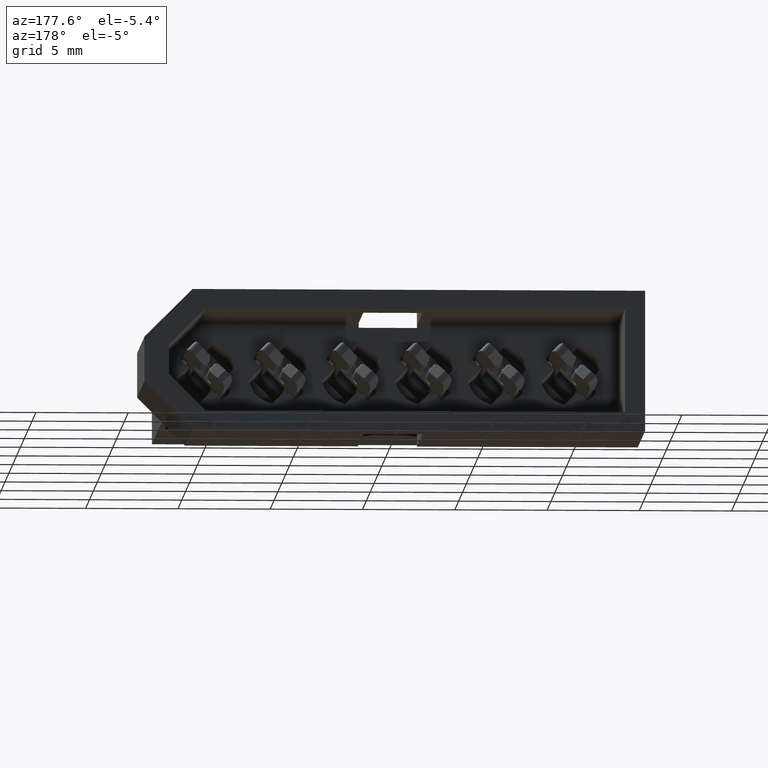
[diagram: clean part render]
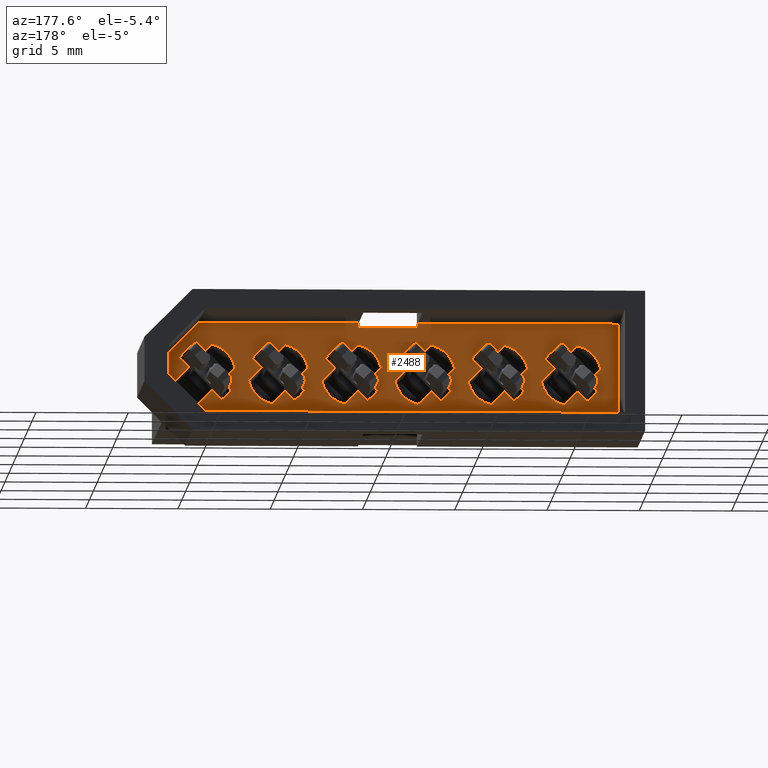
[diagram: same view with one face highlighted and labeled with its STEP entity id]
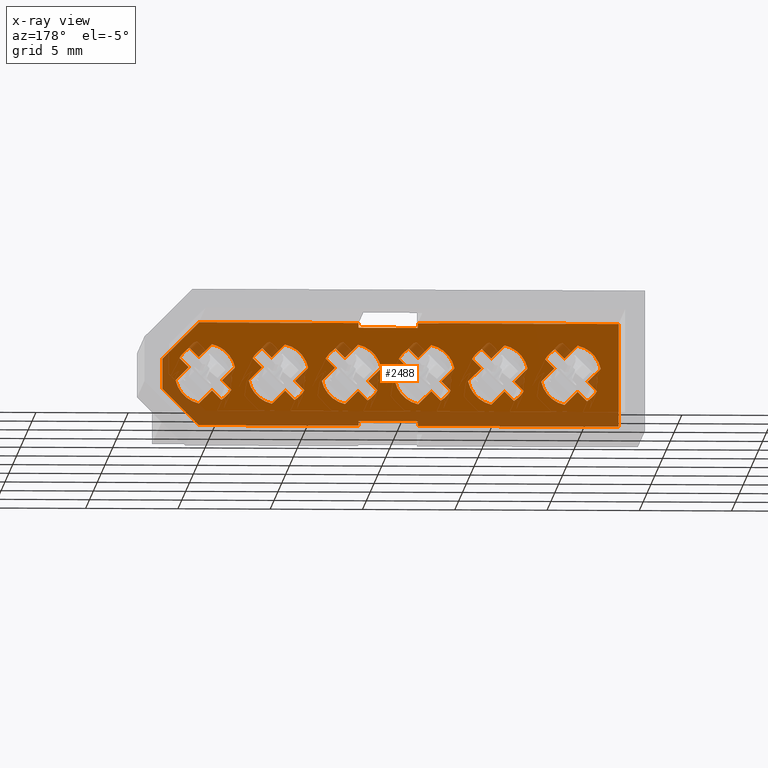
[diagram: x-ray of the same camera — body ghosted, the highlighted face saturated]
A machine part, auxiliary view. The second image highlights one B-rep face of the part: STEP entity #2488.
The next image is the same camera in x-ray: the body ghosted, the highlighted face saturated — about 25% of this face is hidden behind the body in this view.
In plain terms, the highlighted planar face has unit normal (0, -1, 0).
Its self-contained STEP definition (entity closure, byte-faithful):
#7 = CARTESIAN_POINT ( 'NONE',  ( -2.575109175245272800, 1.015999999999999600, -2.793999999999999200 ) ) ;
#39 = CARTESIAN_POINT ( 'NONE',  ( -0.3551198414618430000, 1.015999999999999600, 1.612355698411524400 ) ) ;
#44 = DIRECTION ( 'NONE',  ( -0.7071067811865479100, -0.0000000000000000000, -0.7071067811865472400 ) ) ;
#49 = ORIENTED_EDGE ( 'NONE', *, *, #7945, .F. ) ;
#52 = CARTESIAN_POINT ( 'NONE',  ( 4.321610244842764500, 1.015999999999999600, 0.8980256121069167800 ) ) ;
#63 = VECTOR ( 'NONE', #7915, 1000.000000000000100 ) ;
#70 = CARTESIAN_POINT ( 'NONE',  ( 11.50620000000000200, 1.015999999999999600, -2.794000000000002700 ) ) ;
#93 = EDGE_CURVE ( 'NONE', #8089, #1264, #7784, .T. ) ;
#123 = DIRECTION ( 'NONE',  ( 0.0000000000000000000, 0.0000000000000000000, 1.000000000000000000 ) ) ;
#127 = CARTESIAN_POINT ( 'NONE',  ( 11.53208015853815600, 1.015999999999999600, 1.612355698411524200 ) ) ;
#147 = VERTEX_POINT ( 'NONE', #2831 ) ;
#149 = ORIENTED_EDGE ( 'NONE', *, *, #8045, .F. ) ;
#153 = CARTESIAN_POINT ( 'NONE',  ( 4.828914848937816200, 1.015999999999999600, 1.405330216201970100 ) ) ;
#156 = FACE_BOUND ( 'NONE', #7640, .T. ) ;
#160 = ORIENTED_EDGE ( 'NONE', *, *, #5793, .F. ) ;
#188 = CARTESIAN_POINT ( 'NONE',  ( 7.565589755157232000, 1.015999999999999600, -0.8980256121069142300 ) ) ;
#190 = VERTEX_POINT ( 'NONE', #1592 ) ;
#203 = DIRECTION ( 'NONE',  ( -0.7071067811865441300, -0.0000000000000000000, -0.7071067811865507900 ) ) ;
#243 = EDGE_CURVE ( 'NONE', #7851, #2164, #3482, .T. ) ;
#252 = VERTEX_POINT ( 'NONE', #70 ) ;
#271 = CARTESIAN_POINT ( 'NONE',  ( 8.305799999999994300, 1.015999999999999600, -2.539999999999999600 ) ) ;
#299 = VECTOR ( 'NONE', #774, 1000.000000000000000 ) ;
#301 = EDGE_CURVE ( 'NONE', #8111, #426, #2908, .T. ) ;
#307 = VERTEX_POINT ( 'NONE', #5313 ) ;
#327 = DIRECTION ( 'NONE',  ( -0.7071067811865473500, -0.0000000000000000000, 0.7071067811865476800 ) ) ;
#331 = CARTESIAN_POINT ( 'NONE',  ( 0.8980256121069147800, 1.015999999999999600, 0.3592102448427675300 ) ) ;
#340 = CIRCLE ( 'NONE', #4217, 1.650999999999999800 ) ;
#346 = CARTESIAN_POINT ( 'NONE',  ( -2.575109175245272800, 1.015999999999999600, -2.793999999999999200 ) ) ;
#355 = DIRECTION ( 'NONE',  ( 0.7071067811865479100, 0.0000000000000000000, -0.7071067811865470200 ) ) ;
#356 = ORIENTED_EDGE ( 'NONE', *, *, #8534, .F. ) ;
#362 = CARTESIAN_POINT ( 'NONE',  ( 11.88719999999999800, 1.015999999999999600, 0.0000000000000000000 ) ) ;
#381 = LINE ( 'NONE', #52, #4014 ) ;
#386 = DIRECTION ( 'NONE',  ( 0.0000000000000000000, 0.0000000000000000000, 1.000000000000000000 ) ) ;
#406 = EDGE_CURVE ( 'NONE', #9323, #307, #6193, .T. ) ;
#417 = EDGE_LOOP ( 'NONE', ( #6371, #835, #4051, #5792, #3807, #6722, #583, #5144, #5942, #7756, #8132, #913 ) ) ;
#424 = EDGE_CURVE ( 'NONE', #4663, #4720, #4731, .T. ) ;
#426 = VERTEX_POINT ( 'NONE', #3305 ) ;
#432 = DIRECTION ( 'NONE',  ( 2.134256245050205500E-015, -0.0000000000000000000, -1.000000000000000000 ) ) ;
#433 = VECTOR ( 'NONE', #8223, 999.9999999999998900 ) ;
#434 = DIRECTION ( 'NONE',  ( -1.000000000000000000, -0.0000000000000000000, 1.526172063499589000E-016 ) ) ;
#441 = ORIENTED_EDGE ( 'NONE', *, *, #5807, .F. ) ;
#456 = CARTESIAN_POINT ( 'NONE',  ( 4.860425612106914700, 1.015999999999999600, 0.3592102448427675300 ) ) ;
#460 = CARTESIAN_POINT ( 'NONE',  ( 3.607280158538156600, 1.015999999999999600, 1.612355698411524600 ) ) ;
#464 = DIRECTION ( 'NONE',  ( -0.7071067811865460200, -0.0000000000000000000, -0.7071067811865490200 ) ) ;
#486 = LINE ( 'NONE', #6521, #8743 ) ;
#487 = CARTESIAN_POINT ( 'NONE',  ( 10.48186978379803200, 1.015999999999999600, -0.8665148489378204900 ) ) ;
#506 = CARTESIAN_POINT ( 'NONE',  ( 6.519469783798033500, 1.015999999999999600, -0.8665148489378219400 ) ) ;
#507 = VERTEX_POINT ( 'NONE', #4001 ) ;
#518 = VERTEX_POINT ( 'NONE', #9215 ) ;
#532 = DIRECTION ( 'NONE',  ( 0.0000000000000000000, 1.000000000000000000, 0.0000000000000000000 ) ) ;
#550 = CARTESIAN_POINT ( 'NONE',  ( 1.612355698411524200, 1.015999999999999600, -0.3551198414618434400 ) ) ;
#554 = EDGE_CURVE ( 'NONE', #4378, #252, #1538, .T. ) ;
#565 = ORIENTED_EDGE ( 'NONE', *, *, #6608, .F. ) ;
#571 = EDGE_CURVE ( 'NONE', #7006, #6643, #9125, .T. ) ;
#576 = DIRECTION ( 'NONE',  ( 0.7071067811865479100, 0.0000000000000000000, -0.7071067811865470200 ) ) ;
#583 = ORIENTED_EDGE ( 'NONE', *, *, #3395, .F. ) ;
#584 = CIRCLE ( 'NONE', #1627, 1.650999999999999400 ) ;
#601 = VECTOR ( 'NONE', #1714, 1000.000000000000000 ) ;
#607 = CARTESIAN_POINT ( 'NONE',  ( 11.02068515106218200, 1.015999999999999600, -1.405330216201969200 ) ) ;
#616 = EDGE_CURVE ( 'NONE', #3001, #8449, #2681, .T. ) ;
#623 = ORIENTED_EDGE ( 'NONE', *, *, #7391, .F. ) ;
#624 = VERTEX_POINT ( 'NONE', #8018 ) ;
#649 = CARTESIAN_POINT ( 'NONE',  ( 0.8980256121069147800, 1.015999999999999600, 0.3592102448427674200 ) ) ;
#691 = CARTESIAN_POINT ( 'NONE',  ( 7.058285151062182900, 1.015999999999999600, -1.405330216201969400 ) ) ;
#715 = LINE ( 'NONE', #3237, #6489 ) ;
#726 = CIRCLE ( 'NONE', #4825, 1.650999999999999800 ) ;
#747 = CARTESIAN_POINT ( 'NONE',  ( 19.81199999999999800, 1.015999999999999600, 0.0000000000000000000 ) ) ;
#754 = LINE ( 'NONE', #4203, #4946 ) ;
#764 = EDGE_CURVE ( 'NONE', #999, #9038, #4390, .T. ) ;
#774 = DIRECTION ( 'NONE',  ( 1.000000000000000000, -0.0000000000000000000, -1.144629047624691800E-016 ) ) ;
#809 = DIRECTION ( 'NONE',  ( -0.0000000000000000000, 0.0000000000000000000, 1.000000000000000000 ) ) ;
#810 = CARTESIAN_POINT ( 'NONE',  ( 7.569680158538155900, 1.015999999999999600, 1.612355698411524600 ) ) ;
#834 = CARTESIAN_POINT ( 'NONE',  ( 11.02068515106218200, 1.015999999999999600, -1.405330216201969200 ) ) ;
#835 = ORIENTED_EDGE ( 'NONE', *, *, #1189, .F. ) ;
#846 = ORIENTED_EDGE ( 'NONE', *, *, #4614, .T. ) ;
#848 = EDGE_CURVE ( 'NONE', #1977, #9323, #6752, .T. ) ;
#860 = AXIS2_PLACEMENT_3D ( 'NONE', #4545, #4425, #1526 ) ;
#872 = AXIS2_PLACEMENT_3D ( 'NONE', #8198, #1076, #1008 ) ;
#881 = EDGE_CURVE ( 'NONE', #5858, #518, #4055, .T. ) ;
#907 = EDGE_CURVE ( 'NONE', #426, #4208, #754, .T. ) ;
#913 = ORIENTED_EDGE ( 'NONE', *, *, #2113, .F. ) ;
#928 = VERTEX_POINT ( 'NONE', #9223 ) ;
#938 = CARTESIAN_POINT ( 'NONE',  ( 8.305799999999994300, 1.015999999999999600, -2.794000000000002700 ) ) ;
#963 = LINE ( 'NONE', #1657, #1191 ) ;
#980 = CARTESIAN_POINT ( 'NONE',  ( 0.8980256121069147800, 1.015999999999999600, 0.3592102448427675300 ) ) ;
#984 = ORIENTED_EDGE ( 'NONE', *, *, #7993, .F. ) ;
#995 = VECTOR ( 'NONE', #2316, 1000.000000000000000 ) ;
#997 = DIRECTION ( 'NONE',  ( 0.0000000000000000000, 0.0000000000000000000, 1.000000000000000000 ) ) ;
#999 = VERTEX_POINT ( 'NONE', #5223 ) ;
#1005 = EDGE_CURVE ( 'NONE', #2164, #7138, #963, .T. ) ;
#1008 = DIRECTION ( 'NONE',  ( 0.0000000000000000000, 0.0000000000000000000, -1.000000000000000000 ) ) ;
#1054 = ORIENTED_EDGE ( 'NONE', *, *, #2722, .F. ) ;
#1062 = VERTEX_POINT ( 'NONE', #834 ) ;
#1067 = EDGE_CURVE ( 'NONE', #6280, #1977, #7197, .T. ) ;
#1075 = VERTEX_POINT ( 'NONE', #1558 ) ;
#1076 = DIRECTION ( 'NONE',  ( 0.0000000000000000000, -1.000000000000000000, 0.0000000000000000000 ) ) ;
#1110 = CARTESIAN_POINT ( 'NONE',  ( 9.537155698411522700, 1.015999999999999600, -0.3551198414618434400 ) ) ;
#1147 = DIRECTION ( 'NONE',  ( -0.7071067811865465700, -0.0000000000000000000, -0.7071067811865485700 ) ) ;
#1170 = CARTESIAN_POINT ( 'NONE',  ( 0.0000000000000000000, 1.015999999999999600, 0.0000000000000000000 ) ) ;
#1178 = DIRECTION ( 'NONE',  ( 0.0000000000000000000, 0.0000000000000000000, -1.000000000000000000 ) ) ;
#1181 = CIRCLE ( 'NONE', #8584, 1.650999999999999800 ) ;
#1189 = EDGE_CURVE ( 'NONE', #2698, #3001, #4497, .T. ) ;
#1191 = VECTOR ( 'NONE', #5927, 1000.000000000000100 ) ;
#1192 = CARTESIAN_POINT ( 'NONE',  ( 12.78522561210691300, 1.015999999999999600, 0.3592102448427675300 ) ) ;
#1213 = DIRECTION ( 'NONE',  ( 1.000000000000000000, -0.0000000000000000000, -1.144629047624691800E-016 ) ) ;
#1243 = VECTOR ( 'NONE', #2688, 1000.000000000000100 ) ;
#1254 = CARTESIAN_POINT ( 'NONE',  ( 10.27484430158847500, 1.015999999999999600, 0.3551198414618433300 ) ) ;
#1260 = VECTOR ( 'NONE', #1147, 1000.000000000000000 ) ;
#1264 = VERTEX_POINT ( 'NONE', #5542 ) ;
#1315 = DIRECTION ( 'NONE',  ( -0.7071067811865462400, -0.0000000000000000000, -0.7071067811865489100 ) ) ;
#1322 = DIRECTION ( 'NONE',  ( 0.0000000000000000000, 0.0000000000000000000, 1.000000000000000000 ) ) ;
#1341 = ORIENTED_EDGE ( 'NONE', *, *, #554, .F. ) ;
#1383 = ORIENTED_EDGE ( 'NONE', *, *, #7672, .F. ) ;
#1387 = EDGE_CURVE ( 'NONE', #4912, #8111, #6404, .T. ) ;
#1392 = VERTEX_POINT ( 'NONE', #9330 ) ;
#1396 = VECTOR ( 'NONE', #8475, 1000.000000000000000 ) ;
#1410 = ORIENTED_EDGE ( 'NONE', *, *, #1745, .F. ) ;
#1425 = DIRECTION ( 'NONE',  ( 0.7071067811865440200, 0.0000000000000000000, 0.7071067811865511300 ) ) ;
#1440 = VERTEX_POINT ( 'NONE', #649 ) ;
#1446 = DIRECTION ( 'NONE',  ( 0.7071067811865461300, 0.0000000000000000000, 0.7071067811865489100 ) ) ;
#1455 = DIRECTION ( 'NONE',  ( 0.0000000000000000000, 1.000000000000000000, 0.0000000000000000000 ) ) ;
#1466 = CARTESIAN_POINT ( 'NONE',  ( 0.3592102448427649800, 1.015999999999999600, 0.8980256121069167800 ) ) ;
#1473 = ORIENTED_EDGE ( 'NONE', *, *, #4778, .F. ) ;
#1487 = LINE ( 'NONE', #980, #6137 ) ;
#1490 = ORIENTED_EDGE ( 'NONE', *, *, #4494, .F. ) ;
#1498 = CARTESIAN_POINT ( 'NONE',  ( 20.15789082475472000, 1.015999999999999600, -2.794000000000002700 ) ) ;
#1504 = DIRECTION ( 'NONE',  ( 0.0000000000000000000, 0.0000000000000000000, 1.000000000000000000 ) ) ;
#1520 = DIRECTION ( 'NONE',  ( 0.0000000000000000000, 1.000000000000000000, 0.0000000000000000000 ) ) ;
#1523 = CARTESIAN_POINT ( 'NONE',  ( 11.52798975515723300, 1.015999999999999600, -0.8980256121069142300 ) ) ;
#1526 = DIRECTION ( 'NONE',  ( 0.0000000000000000000, 0.0000000000000000000, 1.000000000000000000 ) ) ;
#1529 = VERTEX_POINT ( 'NONE', #4320 ) ;
#1531 = ORIENTED_EDGE ( 'NONE', *, *, #2394, .F. ) ;
#1536 = DIRECTION ( 'NONE',  ( -0.7071067811865465700, -0.0000000000000000000, 0.7071067811865484600 ) ) ;
#1538 = LINE ( 'NONE', #8498, #2210 ) ;
#1544 = ORIENTED_EDGE ( 'NONE', *, *, #1872, .F. ) ;
#1552 = VERTEX_POINT ( 'NONE', #188 ) ;
#1554 = CARTESIAN_POINT ( 'NONE',  ( 7.569680158538155000, 1.015999999999999600, 1.612355698411524200 ) ) ;
#1558 = CARTESIAN_POINT ( 'NONE',  ( 14.44426978379803300, 1.015999999999999600, -0.8665148489378204900 ) ) ;
#1592 = CARTESIAN_POINT ( 'NONE',  ( 21.21733021620196200, 1.015999999999999600, 0.8665148489378218200 ) ) ;
#1627 = AXIS2_PLACEMENT_3D ( 'NONE', #4734, #5443, #386 ) ;
#1657 = CARTESIAN_POINT ( 'NONE',  ( -1.405330216201966100, 1.015999999999999600, -0.8665148489378208300 ) ) ;
#1660 = VECTOR ( 'NONE', #1213, 1000.000000000000000 ) ;
#1662 = LINE ( 'NONE', #1523, #6756 ) ;
#1686 = CARTESIAN_POINT ( 'NONE',  ( 11.53208015853815600, 1.015999999999999600, 1.612355698411524400 ) ) ;
#1688 = EDGE_LOOP ( 'NONE', ( #3225, #441, #8718, #3313, #4908, #3657, #149, #356, #1490, #4696, #1054, #984 ) ) ;
#1714 = DIRECTION ( 'NONE',  ( -0.7071067811865474600, -0.0000000000000000000, 0.7071067811865475700 ) ) ;
#1739 = PLANE ( 'NONE',  #872 ) ;
#1743 = DIRECTION ( 'NONE',  ( 0.7071067811865466800, 0.0000000000000000000, -0.7071067811865483500 ) ) ;
#1745 = EDGE_CURVE ( 'NONE', #1062, #4513, #1181, .T. ) ;
#1751 = EDGE_CURVE ( 'NONE', #4522, #147, #6674, .T. ) ;
#1752 = ORIENTED_EDGE ( 'NONE', *, *, #907, .F. ) ;
#1778 = CIRCLE ( 'NONE', #7351, 1.650999999999999800 ) ;
#1784 = CARTESIAN_POINT ( 'NONE',  ( 17.46195569841152600, 1.015999999999999600, -0.3551198414618434400 ) ) ;
#1788 = CIRCLE ( 'NONE', #5826, 1.650999999999999800 ) ;
#1795 = CARTESIAN_POINT ( 'NONE',  ( -1.405330216201966300, 1.015999999999999600, -0.8665148489378204900 ) ) ;
#1832 = CARTESIAN_POINT ( 'NONE',  ( 8.305799999999994300, 1.015999999999999600, 2.794000000000000000 ) ) ;
#1862 = DIRECTION ( 'NONE',  ( 0.0000000000000000000, 0.0000000000000000000, 1.000000000000000000 ) ) ;
#1863 = EDGE_CURVE ( 'NONE', #4713, #4375, #340, .T. ) ;
#1872 = EDGE_CURVE ( 'NONE', #2897, #1062, #4312, .T. ) ;
#1916 = LINE ( 'NONE', #6329, #5419 ) ;
#1923 = CIRCLE ( 'NONE', #7807, 1.651000000000000200 ) ;
#1947 = CARTESIAN_POINT ( 'NONE',  ( 3.603189755157232300, 1.015999999999999600, -0.8980256121069142300 ) ) ;
#1964 = FACE_BOUND ( 'NONE', #3272, .T. ) ;
#1974 = VERTEX_POINT ( 'NONE', #5113 ) ;
#1977 = VERTEX_POINT ( 'NONE', #5081 ) ;
#1995 = VECTOR ( 'NONE', #5901, 1000.000000000000000 ) ;
#1996 = CARTESIAN_POINT ( 'NONE',  ( 0.3592102448427649800, 1.015999999999999600, 0.8980256121069167800 ) ) ;
#1999 = VECTOR ( 'NONE', #4238, 1000.000000000000000 ) ;
#2011 = AXIS2_PLACEMENT_3D ( 'NONE', #362, #4744, #1178 ) ;
#2027 = VERTEX_POINT ( 'NONE', #3784 ) ;
#2036 = CARTESIAN_POINT ( 'NONE',  ( 11.88719999999999800, 1.015999999999999600, 0.0000000000000000000 ) ) ;
#2040 = LINE ( 'NONE', #7379, #5664 ) ;
#2046 = CARTESIAN_POINT ( 'NONE',  ( 0.0000000000000000000, 1.015999999999999600, 0.0000000000000000000 ) ) ;
#2080 = FACE_BOUND ( 'NONE', #3566, .T. ) ;
#2093 = VERTEX_POINT ( 'NONE', #8939 ) ;
#2113 = EDGE_CURVE ( 'NONE', #8449, #1529, #4765, .T. ) ;
#2135 = CARTESIAN_POINT ( 'NONE',  ( 8.822825612106912600, 1.015999999999999600, 0.3592102448427675300 ) ) ;
#2140 = CARTESIAN_POINT ( 'NONE',  ( 0.8665148489378161600, 1.015999999999999600, 1.405330216201970300 ) ) ;
#2142 = CARTESIAN_POINT ( 'NONE',  ( 3.095885151062184100, 1.015999999999999600, -1.405330216201969200 ) ) ;
#2164 = VERTEX_POINT ( 'NONE', #1795 ) ;
#2165 = VERTEX_POINT ( 'NONE', #2514 ) ;
#2177 = CARTESIAN_POINT ( 'NONE',  ( 16.20881024484276600, 1.015999999999999600, 0.8980256121069167800 ) ) ;
#2203 = EDGE_CURVE ( 'NONE', #5438, #5232, #9218, .T. ) ;
#2210 = VECTOR ( 'NONE', #4887, 1000.000000000000000 ) ;
#2227 = EDGE_CURVE ( 'NONE', #5043, #2913, #2875, .T. ) ;
#2243 = AXIS2_PLACEMENT_3D ( 'NONE', #6159, #7611, #3287 ) ;
#2316 = DIRECTION ( 'NONE',  ( 1.000000000000000000, 0.0000000000000000000, 0.0000000000000000000 ) ) ;
#2318 = VECTOR ( 'NONE', #8497, 1000.000000000000100 ) ;
#2339 = VERTEX_POINT ( 'NONE', #4987 ) ;
#2348 = EDGE_CURVE ( 'NONE', #307, #3656, #726, .T. ) ;
#2349 = VERTEX_POINT ( 'NONE', #4261 ) ;
#2358 = EDGE_CURVE ( 'NONE', #2662, #2698, #5031, .T. ) ;
#2364 = VERTEX_POINT ( 'NONE', #7151 ) ;
#2394 = EDGE_CURVE ( 'NONE', #6632, #6469, #7282, .T. ) ;
#2422 = DIRECTION ( 'NONE',  ( 0.0000000000000000000, 1.000000000000000000, 0.0000000000000000000 ) ) ;
#2479 = CARTESIAN_POINT ( 'NONE',  ( 15.84959999999999900, 1.015999999999999600, 0.0000000000000000000 ) ) ;
#2488 = ADVANCED_FACE ( 'NONE', ( #5704, #2534, #1964, #4251, #2080, #156, #7627 ), #1739, .F. ) ;
#2489 = CARTESIAN_POINT ( 'NONE',  ( 3.962399999999999700, 1.015999999999999600, 0.0000000000000000000 ) ) ;
#2514 = CARTESIAN_POINT ( 'NONE',  ( 8.822825612106912600, 1.015999999999999600, 0.3592102448427671500 ) ) ;
#2528 = ORIENTED_EDGE ( 'NONE', *, *, #4654, .F. ) ;
#2531 = EDGE_CURVE ( 'NONE', #9332, #3728, #715, .T. ) ;
#2534 = FACE_BOUND ( 'NONE', #417, .T. ) ;
#2548 = ORIENTED_EDGE ( 'NONE', *, *, #848, .F. ) ;
#2560 = CIRCLE ( 'NONE', #4389, 1.651000000000000500 ) ;
#2566 = AXIS2_PLACEMENT_3D ( 'NONE', #6266, #4879, #7704 ) ;
#2575 = CARTESIAN_POINT ( 'NONE',  ( 20.15789082475472000, 1.015999999999999600, 2.793999999999997400 ) ) ;
#2585 = ORIENTED_EDGE ( 'NONE', *, *, #2203, .T. ) ;
#2586 = VERTEX_POINT ( 'NONE', #938 ) ;
#2598 = EDGE_CURVE ( 'NONE', #2586, #6054, #3797, .T. ) ;
#2641 = CARTESIAN_POINT ( 'NONE',  ( 20.15789082475472000, 1.015999999999999600, 2.793999999999997400 ) ) ;
#2662 = VERTEX_POINT ( 'NONE', #7114 ) ;
#2681 = LINE ( 'NONE', #8840, #7655 ) ;
#2682 = CARTESIAN_POINT ( 'NONE',  ( 20.71002561210691100, 1.015999999999999600, 0.3592102448427675300 ) ) ;
#2688 = DIRECTION ( 'NONE',  ( 0.7071067811865470200, 0.0000000000000000000, -0.7071067811865479100 ) ) ;
#2694 = ORIENTED_EDGE ( 'NONE', *, *, #4439, .F. ) ;
#2698 = VERTEX_POINT ( 'NONE', #4159 ) ;
#2707 = ORIENTED_EDGE ( 'NONE', *, *, #5397, .F. ) ;
#2722 = EDGE_CURVE ( 'NONE', #3929, #8890, #7850, .T. ) ;
#2729 = ORIENTED_EDGE ( 'NONE', *, *, #2830, .F. ) ;
#2736 = EDGE_LOOP ( 'NONE', ( #9070, #4045, #5550, #2548, #8419, #2729, #2841, #3764, #7951, #565, #4716, #2707 ) ) ;
#2757 = DIRECTION ( 'NONE',  ( 0.7071067811865440200, 0.0000000000000000000, 0.7071067811865511300 ) ) ;
#2818 = CIRCLE ( 'NONE', #6907, 1.650999999999999800 ) ;
#2830 = EDGE_CURVE ( 'NONE', #8253, #6280, #381, .T. ) ;
#2831 = CARTESIAN_POINT ( 'NONE',  ( 0.3551198414618428300, 1.015999999999999600, -1.612355698411524600 ) ) ;
#2841 = ORIENTED_EDGE ( 'NONE', *, *, #3956, .F. ) ;
#2844 = VERTEX_POINT ( 'NONE', #2902 ) ;
#2863 = DIRECTION ( 'NONE',  ( 0.0000000000000000000, 1.000000000000000000, -0.0000000000000000000 ) ) ;
#2864 = VECTOR ( 'NONE', #5660, 1000.000000000000000 ) ;
#2875 = LINE ( 'NONE', #6317, #1396 ) ;
#2889 = CARTESIAN_POINT ( 'NONE',  ( 12.75371484893781500, 1.015999999999999600, 1.405330216201970300 ) ) ;
#2891 = CARTESIAN_POINT ( 'NONE',  ( 8.791314848937815900, 1.015999999999999600, 1.405330216201970300 ) ) ;
#2893 = EDGE_CURVE ( 'NONE', #1264, #2165, #3772, .T. ) ;
#2896 = CARTESIAN_POINT ( 'NONE',  ( 20.71002561210691400, 1.015999999999999600, 0.3592102448427680300 ) ) ;
#2897 = VERTEX_POINT ( 'NONE', #3607 ) ;
#2902 = CARTESIAN_POINT ( 'NONE',  ( 7.026774387893085300, 1.015999999999999600, -0.3592102448427669200 ) ) ;
#2908 = LINE ( 'NONE', #1686, #7093 ) ;
#2913 = VERTEX_POINT ( 'NONE', #6479 ) ;
#2918 = ORIENTED_EDGE ( 'NONE', *, *, #7994, .F. ) ;
#2927 = CARTESIAN_POINT ( 'NONE',  ( 4.860425612106914700, 1.015999999999999600, 0.3592102448427675300 ) ) ;
#2943 = VECTOR ( 'NONE', #327, 1000.000000000000100 ) ;
#2949 = CARTESIAN_POINT ( 'NONE',  ( 0.0000000000000000000, 1.015999999999999600, 0.0000000000000000000 ) ) ;
#2954 = LINE ( 'NONE', #460, #7825 ) ;
#2957 = CARTESIAN_POINT ( 'NONE',  ( 8.305799999999994300, 1.015999999999999600, 0.0000000000000000000 ) ) ;
#3001 = VERTEX_POINT ( 'NONE', #4529 ) ;
#3006 = ORIENTED_EDGE ( 'NONE', *, *, #6067, .T. ) ;
#3017 = CARTESIAN_POINT ( 'NONE',  ( 18.40666978379803000, 1.015999999999999600, -0.8665148489378208300 ) ) ;
#3027 = CIRCLE ( 'NONE', #9226, 1.651000000000000900 ) ;
#3037 = DIRECTION ( 'NONE',  ( 0.0000000000000000000, 1.000000000000000000, -0.0000000000000000000 ) ) ;
#3128 = LINE ( 'NONE', #5819, #63 ) ;
#3140 = ORIENTED_EDGE ( 'NONE', *, *, #8546, .F. ) ;
#3155 = LINE ( 'NONE', #4607, #8485 ) ;
#3158 = EDGE_CURVE ( 'NONE', #2339, #2027, #5581, .T. ) ;
#3160 = AXIS2_PLACEMENT_3D ( 'NONE', #4816, #9236, #1322 ) ;
#3163 = EDGE_LOOP ( 'NONE', ( #1341, #3006, #4071, #7296, #8360, #4442, #4824, #8979, #846, #6083, #3618, #2585, #3927, #5496 ) ) ;
#3169 = AXIS2_PLACEMENT_3D ( 'NONE', #5104, #8626, #6410 ) ;
#3181 = VECTOR ( 'NONE', #7270, 1000.000000000000000 ) ;
#3198 = CARTESIAN_POINT ( 'NONE',  ( 10.27484430158847500, 1.015999999999999600, 0.3551198414618433300 ) ) ;
#3208 = CARTESIAN_POINT ( 'NONE',  ( 6.312444301588475200, 1.015999999999999600, 0.3551198414618435600 ) ) ;
#3212 = EDGE_CURVE ( 'NONE', #3656, #5469, #5341, .T. ) ;
#3225 = ORIENTED_EDGE ( 'NONE', *, *, #2531, .F. ) ;
#3227 = DIRECTION ( 'NONE',  ( 0.0000000000000000000, 1.000000000000000000, 0.0000000000000000000 ) ) ;
#3237 = CARTESIAN_POINT ( 'NONE',  ( 20.71002561210691100, 1.015999999999999600, 0.3592102448427675300 ) ) ;
#3266 = LINE ( 'NONE', #1498, #5744 ) ;
#3272 = EDGE_LOOP ( 'NONE', ( #2918, #8927, #4928, #5130, #6136, #8427, #2694, #7582, #1531, #8754, #623, #8991 ) ) ;
#3287 = DIRECTION ( 'NONE',  ( 0.0000000000000000000, 0.0000000000000000000, 1.000000000000000000 ) ) ;
#3305 = CARTESIAN_POINT ( 'NONE',  ( 12.24641024484276400, 1.015999999999999600, 0.8980256121069167800 ) ) ;
#3308 = LINE ( 'NONE', #8872, #7603 ) ;
#3312 = ORIENTED_EDGE ( 'NONE', *, *, #1005, .F. ) ;
#3313 = ORIENTED_EDGE ( 'NONE', *, *, #7210, .F. ) ;
#3329 = EDGE_CURVE ( 'NONE', #6643, #8089, #486, .T. ) ;
#3330 = DIRECTION ( 'NONE',  ( 0.0000000000000000000, 1.000000000000000000, 0.0000000000000000000 ) ) ;
#3356 = DIRECTION ( 'NONE',  ( 0.0000000000000000000, 0.0000000000000000000, 1.000000000000000000 ) ) ;
#3362 = ORIENTED_EDGE ( 'NONE', *, *, #1863, .F. ) ;
#3395 = EDGE_CURVE ( 'NONE', #4109, #2339, #3428, .T. ) ;
#3397 = CARTESIAN_POINT ( 'NONE',  ( -0.3592102448427670300, 1.015999999999999600, -0.8980256121069142300 ) ) ;
#3428 = LINE ( 'NONE', #4598, #601 ) ;
#3441 = EDGE_CURVE ( 'NONE', #1440, #4522, #1487, .T. ) ;
#3456 = CARTESIAN_POINT ( 'NONE',  ( 18.40666978379803000, 1.015999999999999600, -0.8665148489378202700 ) ) ;
#3475 = AXIS2_PLACEMENT_3D ( 'NONE', #8559, #4168, #4198 ) ;
#3482 = CIRCLE ( 'NONE', #9041, 1.650999999999999800 ) ;
#3484 = CARTESIAN_POINT ( 'NONE',  ( 11.50620000000000200, 1.015999999999999600, 2.539999999999999600 ) ) ;
#3503 = VERTEX_POINT ( 'NONE', #1110 ) ;
#3521 = LINE ( 'NONE', #5009, #3857 ) ;
#3540 = CARTESIAN_POINT ( 'NONE',  ( 8.284010244842763300, 1.015999999999999600, 0.8980256121069167800 ) ) ;
#3564 = CARTESIAN_POINT ( 'NONE',  ( 13.29253021620196600, 1.015999999999999600, 0.8665148489378213800 ) ) ;
#3566 = EDGE_LOOP ( 'NONE', ( #8735, #1473, #1383, #1752, #3827, #5836, #160, #7634, #1410, #1544, #6770, #9102 ) ) ;
#3567 = CARTESIAN_POINT ( 'NONE',  ( 11.50620000000000200, 1.015999999999999600, 2.794000000000000000 ) ) ;
#3607 = CARTESIAN_POINT ( 'NONE',  ( 11.52798975515723300, 1.015999999999999600, -0.8980256121069142300 ) ) ;
#3618 = ORIENTED_EDGE ( 'NONE', *, *, #8163, .T. ) ;
#3619 = DIRECTION ( 'NONE',  ( -0.7071067811865473500, -0.0000000000000000000, 0.7071067811865477900 ) ) ;
#3627 = CARTESIAN_POINT ( 'NONE',  ( 8.822825612106912600, 1.015999999999999600, 0.3592102448427675300 ) ) ;
#3631 = DIRECTION ( 'NONE',  ( 0.7071067811865460200, 0.0000000000000000000, 0.7071067811865490200 ) ) ;
#3638 = DIRECTION ( 'NONE',  ( -0.7071067811865435800, -0.0000000000000000000, -0.7071067811865515700 ) ) ;
#3656 = VERTEX_POINT ( 'NONE', #5537 ) ;
#3657 = ORIENTED_EDGE ( 'NONE', *, *, #4838, .F. ) ;
#3660 = VERTEX_POINT ( 'NONE', #3484 ) ;
#3721 = VERTEX_POINT ( 'NONE', #9320 ) ;
#3728 = VERTEX_POINT ( 'NONE', #5814 ) ;
#3739 = EDGE_CURVE ( 'NONE', #1552, #6632, #5216, .T. ) ;
#3764 = ORIENTED_EDGE ( 'NONE', *, *, #6546, .F. ) ;
#3772 = LINE ( 'NONE', #2135, #9310 ) ;
#3773 = CARTESIAN_POINT ( 'NONE',  ( 11.50620000000000200, 1.015999999999999600, -2.539999999999999600 ) ) ;
#3784 = CARTESIAN_POINT ( 'NONE',  ( 15.49448015853815600, 1.015999999999999600, 1.612355698411524400 ) ) ;
#3797 = LINE ( 'NONE', #2957, #5924 ) ;
#3807 = ORIENTED_EDGE ( 'NONE', *, *, #5154, .F. ) ;
#3808 = EDGE_CURVE ( 'NONE', #7499, #7259, #3308, .T. ) ;
#3827 = ORIENTED_EDGE ( 'NONE', *, *, #301, .F. ) ;
#3842 = LINE ( 'NONE', #4034, #7462 ) ;
#3849 = VECTOR ( 'NONE', #7873, 1000.000000000000100 ) ;
#3856 = ORIENTED_EDGE ( 'NONE', *, *, #1751, .F. ) ;
#3857 = VECTOR ( 'NONE', #8557, 1000.000000000000000 ) ;
#3873 = CARTESIAN_POINT ( 'NONE',  ( 16.74762561210691200, 1.015999999999999600, 0.3592102448427675300 ) ) ;
#3888 = EDGE_CURVE ( 'NONE', #4720, #1440, #7488, .T. ) ;
#3927 = ORIENTED_EDGE ( 'NONE', *, *, #9372, .T. ) ;
#3928 = VECTOR ( 'NONE', #1446, 1000.000000000000100 ) ;
#3929 = VERTEX_POINT ( 'NONE', #4740 ) ;
#3934 = VECTOR ( 'NONE', #4330, 1000.000000000000100 ) ;
#3951 = VECTOR ( 'NONE', #1536, 1000.000000000000000 ) ;
#3956 = EDGE_CURVE ( 'NONE', #4157, #8253, #2954, .T. ) ;
#3976 = CARTESIAN_POINT ( 'NONE',  ( 0.0000000000000000000, 1.015999999999999600, -2.539999999999999600 ) ) ;
#3978 = LINE ( 'NONE', #7817, #8828 ) ;
#4001 = CARTESIAN_POINT ( 'NONE',  ( 18.94548515106218300, 1.015999999999999600, -1.405330216201969200 ) ) ;
#4014 = VECTOR ( 'NONE', #5083, 1000.000000000000000 ) ;
#4034 = CARTESIAN_POINT ( 'NONE',  ( 2.350044301588475100, 1.015999999999999600, 0.3551198414618435600 ) ) ;
#4045 = ORIENTED_EDGE ( 'NONE', *, *, #2348, .F. ) ;
#4047 = VECTOR ( 'NONE', #6501, 1000.000000000000000 ) ;
#4051 = ORIENTED_EDGE ( 'NONE', *, *, #2358, .F. ) ;
#4055 = LINE ( 'NONE', #2575, #1660 ) ;
#4071 = ORIENTED_EDGE ( 'NONE', *, *, #2598, .F. ) ;
#4082 = VECTOR ( 'NONE', #5957, 1000.000000000000100 ) ;
#4109 = VERTEX_POINT ( 'NONE', #7691 ) ;
#4118 = ORIENTED_EDGE ( 'NONE', *, *, #424, .F. ) ;
#4129 = VERTEX_POINT ( 'NONE', #8528 ) ;
#4157 = VERTEX_POINT ( 'NONE', #8573 ) ;
#4159 = CARTESIAN_POINT ( 'NONE',  ( 17.25493021620196300, 1.015999999999999600, 0.8665148489378218200 ) ) ;
#4168 = DIRECTION ( 'NONE',  ( 0.0000000000000000000, 1.000000000000000000, 0.0000000000000000000 ) ) ;
#4177 = DIRECTION ( 'NONE',  ( 0.0000000000000000000, 1.000000000000000000, 0.0000000000000000000 ) ) ;
#4198 = DIRECTION ( 'NONE',  ( 0.0000000000000000000, 0.0000000000000000000, 1.000000000000000000 ) ) ;
#4203 = CARTESIAN_POINT ( 'NONE',  ( 12.24641024484276400, 1.015999999999999600, 0.8980256121069167800 ) ) ;
#4208 = VERTEX_POINT ( 'NONE', #2889 ) ;
#4217 = AXIS2_PLACEMENT_3D ( 'NONE', #2046, #9264, #9289 ) ;
#4218 = CARTESIAN_POINT ( 'NONE',  ( 19.45278975515723000, 1.015999999999999600, -0.8980256121069142300 ) ) ;
#4236 = DIRECTION ( 'NONE',  ( 0.0000000000000000000, 0.0000000000000000000, 1.000000000000000000 ) ) ;
#4238 = DIRECTION ( 'NONE',  ( -1.000000000000000000, -0.0000000000000000000, 1.526172063499589000E-016 ) ) ;
#4251 = FACE_BOUND ( 'NONE', #2736, .T. ) ;
#4261 = CARTESIAN_POINT ( 'NONE',  ( 3.064374387893085600, 1.015999999999999600, -0.3592102448427669200 ) ) ;
#4270 = CARTESIAN_POINT ( 'NONE',  ( 18.19964430158847100, 1.015999999999999600, 0.3551198414618433300 ) ) ;
#4272 = VECTOR ( 'NONE', #7730, 1000.000000000000000 ) ;
#4275 = CARTESIAN_POINT ( 'NONE',  ( 22.13909082475472400, 1.015999999999999600, -0.8128000000000016300 ) ) ;
#4312 = LINE ( 'NONE', #607, #3849 ) ;
#4320 = CARTESIAN_POINT ( 'NONE',  ( 16.20471984146184100, 1.015999999999999600, -1.612355698411525500 ) ) ;
#4323 = CARTESIAN_POINT ( 'NONE',  ( 20.15789082475472000, 1.015999999999999600, -2.794000000000002700 ) ) ;
#4330 = DIRECTION ( 'NONE',  ( 0.7071067811865470200, 0.0000000000000000000, -0.7071067811865479100 ) ) ;
#4375 = VERTEX_POINT ( 'NONE', #7352 ) ;
#4378 = VERTEX_POINT ( 'NONE', #3773 ) ;
#4380 = CARTESIAN_POINT ( 'NONE',  ( 19.45688015853815500, 1.015999999999999600, 1.612355698411524400 ) ) ;
#4385 = LINE ( 'NONE', #3017, #3928 ) ;
#4388 = CARTESIAN_POINT ( 'NONE',  ( 15.84959999999999900, 1.015999999999999600, 0.0000000000000000000 ) ) ;
#4389 = AXIS2_PLACEMENT_3D ( 'NONE', #747, #2863, #6445 ) ;
#4390 = CIRCLE ( 'NONE', #2011, 1.650999999999999800 ) ;
#4395 = CARTESIAN_POINT ( 'NONE',  ( -0.8665148489378158300, 1.015999999999999600, -1.405330216201969200 ) ) ;
#4425 = DIRECTION ( 'NONE',  ( 0.0000000000000000000, 1.000000000000000000, 0.0000000000000000000 ) ) ;
#4430 = EDGE_CURVE ( 'NONE', #8890, #507, #2040, .T. ) ;
#4439 = EDGE_CURVE ( 'NONE', #2844, #2093, #7018, .T. ) ;
#4442 = ORIENTED_EDGE ( 'NONE', *, *, #8501, .T. ) ;
#4469 = DIRECTION ( 'NONE',  ( 0.0000000000000000000, 1.000000000000000000, 0.0000000000000000000 ) ) ;
#4475 = DIRECTION ( 'NONE',  ( 0.0000000000000000000, 0.0000000000000000000, 1.000000000000000000 ) ) ;
#4494 = EDGE_CURVE ( 'NONE', #507, #8553, #584, .T. ) ;
#4497 = LINE ( 'NONE', #3873, #8222 ) ;
#4501 = VECTOR ( 'NONE', #8801, 1000.000000000000100 ) ;
#4513 = VERTEX_POINT ( 'NONE', #487 ) ;
#4519 = VERTEX_POINT ( 'NONE', #7753 ) ;
#4520 = AXIS2_PLACEMENT_3D ( 'NONE', #2479, #4772, #8350 ) ;
#4522 = VERTEX_POINT ( 'NONE', #550 ) ;
#4529 = CARTESIAN_POINT ( 'NONE',  ( 16.74762561210690800, 1.015999999999999600, 0.3592102448427680300 ) ) ;
#4545 = CARTESIAN_POINT ( 'NONE',  ( 3.962399999999999700, 1.015999999999999600, 0.0000000000000000000 ) ) ;
#4577 = VERTEX_POINT ( 'NONE', #3397 ) ;
#4590 = CARTESIAN_POINT ( 'NONE',  ( 19.45278975515723000, 1.015999999999999600, -0.8980256121069142300 ) ) ;
#4598 = CARTESIAN_POINT ( 'NONE',  ( 14.23724430158847400, 1.015999999999999600, 0.3551198414618433300 ) ) ;
#4607 = CARTESIAN_POINT ( 'NONE',  ( 6.519469783798033500, 1.015999999999999600, -0.8665148489378209400 ) ) ;
#4614 = EDGE_CURVE ( 'NONE', #3660, #5858, #3978, .T. ) ;
#4615 = ORIENTED_EDGE ( 'NONE', *, *, #7855, .F. ) ;
#4654 = EDGE_CURVE ( 'NONE', #147, #4577, #3521, .T. ) ;
#4663 = VERTEX_POINT ( 'NONE', #2140 ) ;
#4696 = ORIENTED_EDGE ( 'NONE', *, *, #4430, .F. ) ;
#4713 = VERTEX_POINT ( 'NONE', #7177 ) ;
#4716 = ORIENTED_EDGE ( 'NONE', *, *, #8225, .F. ) ;
#4720 = VERTEX_POINT ( 'NONE', #7146 ) ;
#4731 = CIRCLE ( 'NONE', #5767, 1.651000000000000900 ) ;
#4734 = CARTESIAN_POINT ( 'NONE',  ( 19.81199999999999800, 1.015999999999999600, 0.0000000000000000000 ) ) ;
#4736 = VECTOR ( 'NONE', #434, 1000.000000000000000 ) ;
#4740 = CARTESIAN_POINT ( 'NONE',  ( 20.16711984146183700, 1.015999999999999600, -1.612355698411525500 ) ) ;
#4744 = DIRECTION ( 'NONE',  ( 0.0000000000000000000, 1.000000000000000000, -0.0000000000000000000 ) ) ;
#4746 = VECTOR ( 'NONE', #9026, 1000.000000000000000 ) ;
#4748 = CIRCLE ( 'NONE', #7823, 1.650999999999999800 ) ;
#4756 = CIRCLE ( 'NONE', #3160, 1.650999999999999800 ) ;
#4765 = CIRCLE ( 'NONE', #4520, 1.651000000000000500 ) ;
#4766 = DIRECTION ( 'NONE',  ( 0.7071067811865474600, 0.0000000000000000000, -0.7071067811865476800 ) ) ;
#4772 = DIRECTION ( 'NONE',  ( 0.0000000000000000000, 1.000000000000000000, -0.0000000000000000000 ) ) ;
#4778 = EDGE_CURVE ( 'NONE', #8049, #6287, #9177, .T. ) ;
#4816 = CARTESIAN_POINT ( 'NONE',  ( 3.962399999999999700, 1.015999999999999600, 0.0000000000000000000 ) ) ;
#4824 = ORIENTED_EDGE ( 'NONE', *, *, #2227, .T. ) ;
#4825 = AXIS2_PLACEMENT_3D ( 'NONE', #5731, #9333, #7852 ) ;
#4835 = LINE ( 'NONE', #2641, #299 ) ;
#4838 = EDGE_CURVE ( 'NONE', #624, #5908, #1923, .T. ) ;
#4842 = VECTOR ( 'NONE', #7108, 999.9999999999998900 ) ;
#4874 = CARTESIAN_POINT ( 'NONE',  ( 12.24231984146184100, 1.015999999999999600, -1.612355698411524600 ) ) ;
#4879 = DIRECTION ( 'NONE',  ( 0.0000000000000000000, 1.000000000000000000, -0.0000000000000000000 ) ) ;
#4887 = DIRECTION ( 'NONE',  ( 0.0000000000000000000, 0.0000000000000000000, -1.000000000000000000 ) ) ;
#4908 = ORIENTED_EDGE ( 'NONE', *, *, #8666, .F. ) ;
#4912 = VERTEX_POINT ( 'NONE', #3198 ) ;
#4913 = DIRECTION ( 'NONE',  ( 0.0000000000000000000, 0.0000000000000000000, 1.000000000000000000 ) ) ;
#4928 = ORIENTED_EDGE ( 'NONE', *, *, #93, .F. ) ;
#4940 = LINE ( 'NONE', #1996, #2318 ) ;
#4946 = VECTOR ( 'NONE', #6558, 1000.000000000000000 ) ;
#4987 = CARTESIAN_POINT ( 'NONE',  ( 14.23724430158847400, 1.015999999999999600, 0.3551198414618433300 ) ) ;
#5009 = CARTESIAN_POINT ( 'NONE',  ( -0.3592102448427670300, 1.015999999999999600, -0.8980256121069142300 ) ) ;
#5025 = VERTEX_POINT ( 'NONE', #8361 ) ;
#5031 = CIRCLE ( 'NONE', #5781, 1.651000000000000000 ) ;
#5033 = DIRECTION ( 'NONE',  ( 0.7071067811865461300, 0.0000000000000000000, 0.7071067811865489100 ) ) ;
#5043 = VERTEX_POINT ( 'NONE', #1832 ) ;
#5081 = CARTESIAN_POINT ( 'NONE',  ( 5.367730216201966400, 1.015999999999999600, 0.8665148489378216000 ) ) ;
#5083 = DIRECTION ( 'NONE',  ( 0.7071067811865463500, 0.0000000000000000000, 0.7071067811865487900 ) ) ;
#5104 = CARTESIAN_POINT ( 'NONE',  ( 7.924799999999999400, 1.015999999999999600, 0.0000000000000000000 ) ) ;
#5113 = CARTESIAN_POINT ( 'NONE',  ( 2.350044301588475100, 1.015999999999999600, 0.3551198414618431100 ) ) ;
#5118 = CARTESIAN_POINT ( 'NONE',  ( 10.48186978379803200, 1.015999999999999600, -0.8665148489378208300 ) ) ;
#5123 = EDGE_CURVE ( 'NONE', #6287, #999, #6111, .T. ) ;
#5127 = CARTESIAN_POINT ( 'NONE',  ( -1.612355698411524200, 1.015999999999999600, 0.3551198414618433300 ) ) ;
#5130 = ORIENTED_EDGE ( 'NONE', *, *, #3329, .F. ) ;
#5138 = CARTESIAN_POINT ( 'NONE',  ( 15.49038975515723100, 1.015999999999999600, -0.8980256121069142300 ) ) ;
#5144 = ORIENTED_EDGE ( 'NONE', *, *, #8675, .F. ) ;
#5154 = EDGE_CURVE ( 'NONE', #2027, #1392, #1916, .T. ) ;
#5165 = VECTOR ( 'NONE', #8433, 1000.000000000000100 ) ;
#5169 = DIRECTION ( 'NONE',  ( 0.7071067811865479100, 0.0000000000000000000, -0.7071067811865471300 ) ) ;
#5216 = LINE ( 'NONE', #9351, #8631 ) ;
#5217 = DIRECTION ( 'NONE',  ( 0.0000000000000000000, 0.0000000000000000000, 1.000000000000000000 ) ) ;
#5220 = CARTESIAN_POINT ( 'NONE',  ( -0.8980256121069142300, 1.015999999999999600, -0.3592102448427669200 ) ) ;
#5223 = CARTESIAN_POINT ( 'NONE',  ( 13.49955569841152300, 1.015999999999999600, -0.3551198414618434400 ) ) ;
#5232 = VERTEX_POINT ( 'NONE', #4275 ) ;
#5313 = CARTESIAN_POINT ( 'NONE',  ( 5.574755698411523900, 1.015999999999999600, -0.3551198414618434400 ) ) ;
#5339 = AXIS2_PLACEMENT_3D ( 'NONE', #8001, #7404, #4475 ) ;
#5341 = LINE ( 'NONE', #1947, #6589 ) ;
#5372 = DIRECTION ( 'NONE',  ( -0.7071067811865475700, -0.0000000000000000000, 0.7071067811865474600 ) ) ;
#5377 = VERTEX_POINT ( 'NONE', #4323 ) ;
#5397 = EDGE_CURVE ( 'NONE', #5469, #7239, #8611, .T. ) ;
#5412 = DIRECTION ( 'NONE',  ( 0.7071067811865460200, 0.0000000000000000000, 0.7071067811865490200 ) ) ;
#5419 = VECTOR ( 'NONE', #576, 1000.000000000000100 ) ;
#5438 = VERTEX_POINT ( 'NONE', #6053 ) ;
#5443 = DIRECTION ( 'NONE',  ( 0.0000000000000000000, 1.000000000000000000, 0.0000000000000000000 ) ) ;
#5469 = VERTEX_POINT ( 'NONE', #7652 ) ;
#5496 = ORIENTED_EDGE ( 'NONE', *, *, #8031, .T. ) ;
#5526 = LINE ( 'NONE', #2682, #9369 ) ;
#5537 = CARTESIAN_POINT ( 'NONE',  ( 4.317519841461842300, 1.015999999999999600, -1.612355698411524400 ) ) ;
#5542 = CARTESIAN_POINT ( 'NONE',  ( 9.330130216201967000, 1.015999999999999600, 0.8665148489378214900 ) ) ;
#5550 = ORIENTED_EDGE ( 'NONE', *, *, #406, .F. ) ;
#5554 = EDGE_CURVE ( 'NONE', #2349, #1974, #3842, .T. ) ;
#5581 = CIRCLE ( 'NONE', #6753, 1.650999999999999600 ) ;
#5596 = DIRECTION ( 'NONE',  ( 0.0000000000000000000, 1.000000000000000000, 0.0000000000000000000 ) ) ;
#5610 = VERTEX_POINT ( 'NONE', #7683 ) ;
#5614 = LINE ( 'NONE', #5118, #7080 ) ;
#5648 = LINE ( 'NONE', #1254, #6105 ) ;
#5660 = DIRECTION ( 'NONE',  ( -0.7071067811865465700, -0.0000000000000000000, 0.7071067811865484600 ) ) ;
#5664 = VECTOR ( 'NONE', #5999, 1000.000000000000000 ) ;
#5704 = FACE_BOUND ( 'NONE', #1688, .T. ) ;
#5731 = CARTESIAN_POINT ( 'NONE',  ( 3.962399999999999700, 1.015999999999999600, 0.0000000000000000000 ) ) ;
#5735 = EDGE_CURVE ( 'NONE', #3503, #4129, #2818, .T. ) ;
#5744 = VECTOR ( 'NONE', #44, 999.9999999999998900 ) ;
#5767 = AXIS2_PLACEMENT_3D ( 'NONE', #1170, #3330, #6272 ) ;
#5781 = AXIS2_PLACEMENT_3D ( 'NONE', #4388, #1455, #6523 ) ;
#5792 = ORIENTED_EDGE ( 'NONE', *, *, #6848, .F. ) ;
#5793 = EDGE_CURVE ( 'NONE', #4519, #4912, #5648, .T. ) ;
#5807 = EDGE_CURVE ( 'NONE', #190, #9332, #5526, .T. ) ;
#5814 = CARTESIAN_POINT ( 'NONE',  ( 21.42435569841152100, 1.015999999999999600, -0.3551198414618434400 ) ) ;
#5819 = CARTESIAN_POINT ( 'NONE',  ( 14.44426978379803300, 1.015999999999999600, -0.8665148489378208300 ) ) ;
#5826 = AXIS2_PLACEMENT_3D ( 'NONE', #6791, #2422, #997 ) ;
#5836 = ORIENTED_EDGE ( 'NONE', *, *, #1387, .F. ) ;
#5858 = VERTEX_POINT ( 'NONE', #3567 ) ;
#5874 = DIRECTION ( 'NONE',  ( 0.0000000000000000000, 1.000000000000000000, 0.0000000000000000000 ) ) ;
#5901 = DIRECTION ( 'NONE',  ( 0.7071067811865474600, 0.0000000000000000000, -0.7071067811865476800 ) ) ;
#5908 = VERTEX_POINT ( 'NONE', #8835 ) ;
#5923 = CARTESIAN_POINT ( 'NONE',  ( 20.17121024484276100, 1.015999999999999600, 0.8980256121069167800 ) ) ;
#5924 = VECTOR ( 'NONE', #809, 1000.000000000000000 ) ;
#5927 = DIRECTION ( 'NONE',  ( 0.7071067811865461300, 0.0000000000000000000, 0.7071067811865489100 ) ) ;
#5937 = EDGE_CURVE ( 'NONE', #2913, #3660, #9042, .T. ) ;
#5942 = ORIENTED_EDGE ( 'NONE', *, *, #6714, .F. ) ;
#5957 = DIRECTION ( 'NONE',  ( -0.7071067811865431300, -0.0000000000000000000, -0.7071067811865519000 ) ) ;
#5999 = DIRECTION ( 'NONE',  ( -0.7071067811865430200, -0.0000000000000000000, -0.7071067811865521200 ) ) ;
#6007 = CARTESIAN_POINT ( 'NONE',  ( 15.49038975515723100, 1.015999999999999600, -0.8980256121069142300 ) ) ;
#6049 = EDGE_CURVE ( 'NONE', #6469, #2844, #3155, .T. ) ;
#6053 = CARTESIAN_POINT ( 'NONE',  ( 22.13909082475472100, 1.015999999999999600, 0.8127999999999986300 ) ) ;
#6054 = VERTEX_POINT ( 'NONE', #271 ) ;
#6067 = EDGE_CURVE ( 'NONE', #4378, #6054, #6878, .T. ) ;
#6083 = ORIENTED_EDGE ( 'NONE', *, *, #881, .T. ) ;
#6105 = VECTOR ( 'NONE', #7102, 1000.000000000000000 ) ;
#6111 = LINE ( 'NONE', #1192, #1243 ) ;
#6136 = ORIENTED_EDGE ( 'NONE', *, *, #571, .F. ) ;
#6137 = VECTOR ( 'NONE', #1743, 1000.000000000000000 ) ;
#6159 = CARTESIAN_POINT ( 'NONE',  ( 19.81199999999999800, 1.015999999999999600, 0.0000000000000000000 ) ) ;
#6181 = VECTOR ( 'NONE', #7266, 1000.000000000000000 ) ;
#6193 = LINE ( 'NONE', #456, #5165 ) ;
#6261 = ORIENTED_EDGE ( 'NONE', *, *, #3888, .F. ) ;
#6266 = CARTESIAN_POINT ( 'NONE',  ( 0.0000000000000000000, 1.015999999999999600, 0.0000000000000000000 ) ) ;
#6272 = DIRECTION ( 'NONE',  ( 0.0000000000000000000, 0.0000000000000000000, 1.000000000000000000 ) ) ;
#6280 = VERTEX_POINT ( 'NONE', #153 ) ;
#6287 = VERTEX_POINT ( 'NONE', #6671 ) ;
#6317 = CARTESIAN_POINT ( 'NONE',  ( 8.305799999999994300, 1.015999999999999600, 0.0000000000000000000 ) ) ;
#6322 = DIRECTION ( 'NONE',  ( -0.7071067811865474600, -0.0000000000000000000, 0.7071067811865476800 ) ) ;
#6329 = CARTESIAN_POINT ( 'NONE',  ( 15.49448015853815600, 1.015999999999999600, 1.612355698411524400 ) ) ;
#6361 = CARTESIAN_POINT ( 'NONE',  ( 11.88719999999999800, 1.015999999999999600, 0.0000000000000000000 ) ) ;
#6371 = ORIENTED_EDGE ( 'NONE', *, *, #616, .F. ) ;
#6404 = CIRCLE ( 'NONE', #3475, 1.650999999999999800 ) ;
#6410 = DIRECTION ( 'NONE',  ( 0.0000000000000000000, 0.0000000000000000000, 1.000000000000000000 ) ) ;
#6415 = LINE ( 'NONE', #4270, #4047 ) ;
#6424 = VECTOR ( 'NONE', #3619, 999.9999999999998900 ) ;
#6439 = VERTEX_POINT ( 'NONE', #346 ) ;
#6445 = DIRECTION ( 'NONE',  ( 0.0000000000000000000, 0.0000000000000000000, -1.000000000000000000 ) ) ;
#6469 = VERTEX_POINT ( 'NONE', #506 ) ;
#6479 = CARTESIAN_POINT ( 'NONE',  ( 8.305799999999994300, 1.015999999999999600, 2.539999999999999600 ) ) ;
#6489 = VECTOR ( 'NONE', #8236, 1000.000000000000000 ) ;
#6501 = DIRECTION ( 'NONE',  ( -0.7071067811865483500, -0.0000000000000000000, 0.7071067811865468000 ) ) ;
#6512 = CARTESIAN_POINT ( 'NONE',  ( -2.575109175245271900, 1.015999999999999600, 2.794000000000000000 ) ) ;
#6521 = CARTESIAN_POINT ( 'NONE',  ( 8.284010244842763300, 1.015999999999999600, 0.8980256121069167800 ) ) ;
#6523 = DIRECTION ( 'NONE',  ( 0.0000000000000000000, 0.0000000000000000000, 1.000000000000000000 ) ) ;
#6535 = LINE ( 'NONE', #5923, #9253 ) ;
#6546 = EDGE_CURVE ( 'NONE', #1974, #4157, #4756, .T. ) ;
#6558 = DIRECTION ( 'NONE',  ( 0.7071067811865463500, 0.0000000000000000000, 0.7071067811865487900 ) ) ;
#6572 = DIRECTION ( 'NONE',  ( 0.7071067811865479100, 0.0000000000000000000, -0.7071067811865470200 ) ) ;
#6589 = VECTOR ( 'NONE', #6322, 1000.000000000000000 ) ;
#6598 = CARTESIAN_POINT ( 'NONE',  ( 7.565589755157232000, 1.015999999999999600, -0.8980256121069142300 ) ) ;
#6608 = EDGE_CURVE ( 'NONE', #2364, #2349, #8817, .T. ) ;
#6632 = VERTEX_POINT ( 'NONE', #691 ) ;
#6638 = CARTESIAN_POINT ( 'NONE',  ( 12.78522561210691300, 1.015999999999999600, 0.3592102448427675300 ) ) ;
#6643 = VERTEX_POINT ( 'NONE', #3540 ) ;
#6654 = CARTESIAN_POINT ( 'NONE',  ( 0.0000000000000000000, 1.015999999999999600, 2.539999999999999600 ) ) ;
#6657 = ORIENTED_EDGE ( 'NONE', *, *, #7800, .F. ) ;
#6671 = CARTESIAN_POINT ( 'NONE',  ( 12.78522561210691100, 1.015999999999999600, 0.3592102448427680300 ) ) ;
#6674 = CIRCLE ( 'NONE', #2566, 1.650999999999999800 ) ;
#6710 = ORIENTED_EDGE ( 'NONE', *, *, #243, .F. ) ;
#6714 = EDGE_CURVE ( 'NONE', #7259, #1075, #4748, .T. ) ;
#6722 = ORIENTED_EDGE ( 'NONE', *, *, #3158, .F. ) ;
#6752 = LINE ( 'NONE', #8410, #7312 ) ;
#6753 = AXIS2_PLACEMENT_3D ( 'NONE', #7642, #532, #9196 ) ;
#6756 = VECTOR ( 'NONE', #7252, 1000.000000000000000 ) ;
#6770 = ORIENTED_EDGE ( 'NONE', *, *, #7767, .F. ) ;
#6774 = LINE ( 'NONE', #5138, #3951 ) ;
#6775 = EDGE_CURVE ( 'NONE', #1529, #7499, #6774, .T. ) ;
#6791 = CARTESIAN_POINT ( 'NONE',  ( 7.924799999999999400, 1.015999999999999600, 0.0000000000000000000 ) ) ;
#6848 = EDGE_CURVE ( 'NONE', #1392, #2662, #8367, .T. ) ;
#6863 = LINE ( 'NONE', #3627, #3934 ) ;
#6878 = LINE ( 'NONE', #3976, #4746 ) ;
#6907 = AXIS2_PLACEMENT_3D ( 'NONE', #8060, #3037, #8090 ) ;
#6964 = VECTOR ( 'NONE', #6572, 1000.000000000000100 ) ;
#7006 = VERTEX_POINT ( 'NONE', #1554 ) ;
#7018 = LINE ( 'NONE', #3208, #2943 ) ;
#7080 = VECTOR ( 'NONE', #5033, 1000.000000000000100 ) ;
#7093 = VECTOR ( 'NONE', #355, 1000.000000000000100 ) ;
#7102 = DIRECTION ( 'NONE',  ( -0.7071067811865474600, -0.0000000000000000000, 0.7071067811865475700 ) ) ;
#7107 = VECTOR ( 'NONE', #1425, 999.9999999999998900 ) ;
#7108 = DIRECTION ( 'NONE',  ( 0.7071067811865477900, 0.0000000000000000000, -0.7071067811865473500 ) ) ;
#7114 = CARTESIAN_POINT ( 'NONE',  ( 16.71611484893781400, 1.015999999999999600, 1.405330216201970300 ) ) ;
#7138 = VERTEX_POINT ( 'NONE', #5220 ) ;
#7146 = CARTESIAN_POINT ( 'NONE',  ( 1.405330216201967200, 1.015999999999999600, 0.8665148489378213800 ) ) ;
#7151 = CARTESIAN_POINT ( 'NONE',  ( 2.557069783798033800, 1.015999999999999600, -0.8665148489378209400 ) ) ;
#7177 = CARTESIAN_POINT ( 'NONE',  ( -1.612355698411524200, 1.015999999999999600, 0.3551198414618433300 ) ) ;
#7197 = CIRCLE ( 'NONE', #860, 1.651000000000000700 ) ;
#7210 = EDGE_CURVE ( 'NONE', #5610, #5025, #6535, .T. ) ;
#7218 = LINE ( 'NONE', #6598, #433 ) ;
#7239 = VERTEX_POINT ( 'NONE', #2142 ) ;
#7252 = DIRECTION ( 'NONE',  ( -0.7071067811865465700, -0.0000000000000000000, 0.7071067811865484600 ) ) ;
#7259 = VERTEX_POINT ( 'NONE', #8639 ) ;
#7266 = DIRECTION ( 'NONE',  ( 1.552186360036513500E-016, -0.0000000000000000000, 1.000000000000000000 ) ) ;
#7270 = DIRECTION ( 'NONE',  ( -0.7071067811865474600, -0.0000000000000000000, -0.7071067811865476800 ) ) ;
#7282 = CIRCLE ( 'NONE', #5339, 1.650999999999999800 ) ;
#7296 = ORIENTED_EDGE ( 'NONE', *, *, #7557, .T. ) ;
#7312 = VECTOR ( 'NONE', #464, 1000.000000000000100 ) ;
#7328 = ORIENTED_EDGE ( 'NONE', *, *, #3441, .F. ) ;
#7351 = AXIS2_PLACEMENT_3D ( 'NONE', #2489, #3227, #1862 ) ;
#7352 = CARTESIAN_POINT ( 'NONE',  ( -0.3551198414618437800, 1.015999999999999600, 1.612355698411524200 ) ) ;
#7379 = CARTESIAN_POINT ( 'NONE',  ( 18.94548515106218300, 1.015999999999999600, -1.405330216201969200 ) ) ;
#7391 = EDGE_CURVE ( 'NONE', #4129, #1552, #7218, .T. ) ;
#7404 = DIRECTION ( 'NONE',  ( 0.0000000000000000000, 1.000000000000000000, 0.0000000000000000000 ) ) ;
#7437 = LINE ( 'NONE', #9122, #4736 ) ;
#7461 = EDGE_CURVE ( 'NONE', #2093, #7006, #1788, .T. ) ;
#7462 = VECTOR ( 'NONE', #5372, 1000.000000000000000 ) ;
#7488 = LINE ( 'NONE', #331, #1260 ) ;
#7499 = VERTEX_POINT ( 'NONE', #6007 ) ;
#7500 = CARTESIAN_POINT ( 'NONE',  ( 3.095885151062183600, 1.015999999999999600, -1.405330216201969400 ) ) ;
#7557 = EDGE_CURVE ( 'NONE', #2586, #6439, #7437, .T. ) ;
#7582 = ORIENTED_EDGE ( 'NONE', *, *, #6049, .F. ) ;
#7603 = VECTOR ( 'NONE', #203, 1000.000000000000100 ) ;
#7608 = CARTESIAN_POINT ( 'NONE',  ( 22.13909082475472400, 1.015999999999999600, -0.8128000000000016300 ) ) ;
#7611 = DIRECTION ( 'NONE',  ( 0.0000000000000000000, 1.000000000000000000, 0.0000000000000000000 ) ) ;
#7627 = FACE_OUTER_BOUND ( 'NONE', #3163, .T. ) ;
#7634 = ORIENTED_EDGE ( 'NONE', *, *, #8713, .F. ) ;
#7640 = EDGE_LOOP ( 'NONE', ( #7328, #6261, #4118, #3140, #4615, #3362, #6657, #3312, #6710, #49, #2528, #3856 ) ) ;
#7642 = CARTESIAN_POINT ( 'NONE',  ( 15.84959999999999900, 1.015999999999999600, 0.0000000000000000000 ) ) ;
#7649 = LINE ( 'NONE', #7, #1999 ) ;
#7652 = CARTESIAN_POINT ( 'NONE',  ( 3.603189755157232300, 1.015999999999999600, -0.8980256121069142300 ) ) ;
#7655 = VECTOR ( 'NONE', #5169, 1000.000000000000000 ) ;
#7672 = EDGE_CURVE ( 'NONE', #4208, #8049, #3027, .T. ) ;
#7683 = CARTESIAN_POINT ( 'NONE',  ( 20.17121024484276100, 1.015999999999999600, 0.8980256121069167800 ) ) ;
#7691 = CARTESIAN_POINT ( 'NONE',  ( 14.95157438789308400, 1.015999999999999600, -0.3592102448427669200 ) ) ;
#7704 = DIRECTION ( 'NONE',  ( 0.0000000000000000000, 0.0000000000000000000, -1.000000000000000000 ) ) ;
#7730 = DIRECTION ( 'NONE',  ( -0.7071067811865433500, -0.0000000000000000000, -0.7071067811865517900 ) ) ;
#7753 = CARTESIAN_POINT ( 'NONE',  ( 10.98917438789308500, 1.015999999999999600, -0.3592102448427669200 ) ) ;
#7756 = ORIENTED_EDGE ( 'NONE', *, *, #3808, .F. ) ;
#7764 = LINE ( 'NONE', #4380, #6964 ) ;
#7767 = EDGE_CURVE ( 'NONE', #9038, #2897, #1662, .T. ) ;
#7772 = CIRCLE ( 'NONE', #2243, 1.651000000000000000 ) ;
#7784 = CIRCLE ( 'NONE', #3169, 1.651000000000001100 ) ;
#7800 = EDGE_CURVE ( 'NONE', #7138, #4713, #8799, .T. ) ;
#7807 = AXIS2_PLACEMENT_3D ( 'NONE', #8798, #4469, #123 ) ;
#7817 = CARTESIAN_POINT ( 'NONE',  ( 11.50620000000000200, 1.015999999999999600, 0.0000000000000000000 ) ) ;
#7823 = AXIS2_PLACEMENT_3D ( 'NONE', #7986, #5874, #1504 ) ;
#7825 = VECTOR ( 'NONE', #4766, 1000.000000000000000 ) ;
#7850 = LINE ( 'NONE', #4218, #2864 ) ;
#7851 = VERTEX_POINT ( 'NONE', #4395 ) ;
#7852 = DIRECTION ( 'NONE',  ( 0.0000000000000000000, 0.0000000000000000000, -1.000000000000000000 ) ) ;
#7855 = EDGE_CURVE ( 'NONE', #4375, #9344, #8117, .T. ) ;
#7873 = DIRECTION ( 'NONE',  ( -0.7071067811865441300, -0.0000000000000000000, -0.7071067811865507900 ) ) ;
#7915 = DIRECTION ( 'NONE',  ( 0.7071067811865461300, 0.0000000000000000000, 0.7071067811865489100 ) ) ;
#7929 = EDGE_CURVE ( 'NONE', #5025, #190, #7772, .T. ) ;
#7945 = EDGE_CURVE ( 'NONE', #4577, #7851, #9248, .T. ) ;
#7951 = ORIENTED_EDGE ( 'NONE', *, *, #5554, .F. ) ;
#7986 = CARTESIAN_POINT ( 'NONE',  ( 15.84959999999999900, 1.015999999999999600, 0.0000000000000000000 ) ) ;
#7993 = EDGE_CURVE ( 'NONE', #3728, #3929, #2560, .T. ) ;
#7994 = EDGE_CURVE ( 'NONE', #2165, #3503, #6863, .T. ) ;
#8001 = CARTESIAN_POINT ( 'NONE',  ( 7.924799999999999400, 1.015999999999999600, 0.0000000000000000000 ) ) ;
#8018 = CARTESIAN_POINT ( 'NONE',  ( 18.19964430158847100, 1.015999999999999600, 0.3551198414618433300 ) ) ;
#8031 = EDGE_CURVE ( 'NONE', #5377, #252, #7649, .T. ) ;
#8045 = EDGE_CURVE ( 'NONE', #928, #624, #6415, .T. ) ;
#8049 = VERTEX_POINT ( 'NONE', #3564 ) ;
#8060 = CARTESIAN_POINT ( 'NONE',  ( 7.924799999999999400, 1.015999999999999600, 0.0000000000000000000 ) ) ;
#8089 = VERTEX_POINT ( 'NONE', #2891 ) ;
#8090 = DIRECTION ( 'NONE',  ( 0.0000000000000000000, 0.0000000000000000000, -1.000000000000000000 ) ) ;
#8111 = VERTEX_POINT ( 'NONE', #127 ) ;
#8117 = LINE ( 'NONE', #39, #4842 ) ;
#8132 = ORIENTED_EDGE ( 'NONE', *, *, #6775, .F. ) ;
#8136 = CARTESIAN_POINT ( 'NONE',  ( 22.13909082475472100, 1.015999999999999600, 0.8127999999999986300 ) ) ;
#8163 = EDGE_CURVE ( 'NONE', #518, #5438, #9343, .T. ) ;
#8198 = CARTESIAN_POINT ( 'NONE',  ( 0.0000000000000000000, 1.015999999999999600, 0.0000000000000000000 ) ) ;
#8222 = VECTOR ( 'NONE', #8899, 1000.000000000000000 ) ;
#8223 = DIRECTION ( 'NONE',  ( -0.7071067811865469100, -0.0000000000000000000, 0.7071067811865481300 ) ) ;
#8225 = EDGE_CURVE ( 'NONE', #7239, #2364, #1778, .T. ) ;
#8236 = DIRECTION ( 'NONE',  ( 0.7071067811865479100, 0.0000000000000000000, -0.7071067811865471300 ) ) ;
#8253 = VERTEX_POINT ( 'NONE', #8417 ) ;
#8320 = CARTESIAN_POINT ( 'NONE',  ( -0.8665148489378158300, 1.015999999999999600, -1.405330216201969200 ) ) ;
#8350 = DIRECTION ( 'NONE',  ( 0.0000000000000000000, 0.0000000000000000000, -1.000000000000000000 ) ) ;
#8360 = ORIENTED_EDGE ( 'NONE', *, *, #8430, .T. ) ;
#8361 = CARTESIAN_POINT ( 'NONE',  ( 20.67851484893781200, 1.015999999999999600, 1.405330216201970300 ) ) ;
#8367 = LINE ( 'NONE', #2177, #7107 ) ;
#8410 = CARTESIAN_POINT ( 'NONE',  ( 4.860425612106914700, 1.015999999999999600, 0.3592102448427675300 ) ) ;
#8417 = CARTESIAN_POINT ( 'NONE',  ( 4.321610244842764500, 1.015999999999999600, 0.8980256121069167800 ) ) ;
#8419 = ORIENTED_EDGE ( 'NONE', *, *, #1067, .F. ) ;
#8427 = ORIENTED_EDGE ( 'NONE', *, *, #7461, .F. ) ;
#8430 = EDGE_CURVE ( 'NONE', #6439, #3721, #8783, .T. ) ;
#8433 = DIRECTION ( 'NONE',  ( 0.7071067811865465700, 0.0000000000000000000, -0.7071067811865483500 ) ) ;
#8449 = VERTEX_POINT ( 'NONE', #1784 ) ;
#8475 = DIRECTION ( 'NONE',  ( 0.0000000000000000000, 0.0000000000000000000, -1.000000000000000000 ) ) ;
#8485 = VECTOR ( 'NONE', #5412, 1000.000000000000100 ) ;
#8497 = DIRECTION ( 'NONE',  ( 0.7071067811865459100, 0.0000000000000000000, 0.7071067811865491300 ) ) ;
#8498 = CARTESIAN_POINT ( 'NONE',  ( 11.50620000000000200, 1.015999999999999600, 0.0000000000000000000 ) ) ;
#8501 = EDGE_CURVE ( 'NONE', #3721, #5043, #4835, .T. ) ;
#8528 = CARTESIAN_POINT ( 'NONE',  ( 8.279919841461842000, 1.015999999999999600, -1.612355698411524600 ) ) ;
#8534 = EDGE_CURVE ( 'NONE', #8553, #928, #4385, .T. ) ;
#8546 = EDGE_CURVE ( 'NONE', #9344, #4663, #4940, .T. ) ;
#8553 = VERTEX_POINT ( 'NONE', #3456 ) ;
#8557 = DIRECTION ( 'NONE',  ( -0.7071067811865473500, -0.0000000000000000000, 0.7071067811865477900 ) ) ;
#8559 = CARTESIAN_POINT ( 'NONE',  ( 11.88719999999999800, 1.015999999999999600, 0.0000000000000000000 ) ) ;
#8573 = CARTESIAN_POINT ( 'NONE',  ( 3.607280158538156600, 1.015999999999999600, 1.612355698411524600 ) ) ;
#8580 = CARTESIAN_POINT ( 'NONE',  ( 2.557069783798033800, 1.015999999999999600, -0.8665148489378209400 ) ) ;
#8584 = AXIS2_PLACEMENT_3D ( 'NONE', #6361, #5596, #3356 ) ;
#8611 = LINE ( 'NONE', #7500, #4082 ) ;
#8626 = DIRECTION ( 'NONE',  ( 0.0000000000000000000, 1.000000000000000000, 0.0000000000000000000 ) ) ;
#8631 = VECTOR ( 'NONE', #3638, 999.9999999999998900 ) ;
#8639 = CARTESIAN_POINT ( 'NONE',  ( 14.98308515106218200, 1.015999999999999600, -1.405330216201969200 ) ) ;
#8666 = EDGE_CURVE ( 'NONE', #5908, #5610, #7764, .T. ) ;
#8675 = EDGE_CURVE ( 'NONE', #1075, #4109, #3128, .T. ) ;
#8713 = EDGE_CURVE ( 'NONE', #4513, #4519, #5614, .T. ) ;
#8718 = ORIENTED_EDGE ( 'NONE', *, *, #7929, .F. ) ;
#8735 = ORIENTED_EDGE ( 'NONE', *, *, #5123, .F. ) ;
#8743 = VECTOR ( 'NONE', #9274, 1000.000000000000000 ) ;
#8754 = ORIENTED_EDGE ( 'NONE', *, *, #3739, .F. ) ;
#8759 = DIRECTION ( 'NONE',  ( -0.7071067811865472400, -0.0000000000000000000, -0.7071067811865479100 ) ) ;
#8783 = LINE ( 'NONE', #6512, #6181 ) ;
#8798 = CARTESIAN_POINT ( 'NONE',  ( 19.81199999999999800, 1.015999999999999600, 0.0000000000000000000 ) ) ;
#8799 = LINE ( 'NONE', #5127, #6424 ) ;
#8801 = DIRECTION ( 'NONE',  ( 0.7071067811865474600, -0.0000000000000000000, -0.7071067811865474600 ) ) ;
#8817 = LINE ( 'NONE', #8580, #9045 ) ;
#8828 = VECTOR ( 'NONE', #4913, 1000.000000000000000 ) ;
#8835 = CARTESIAN_POINT ( 'NONE',  ( 19.45688015853815500, 1.015999999999999600, 1.612355698411525000 ) ) ;
#8840 = CARTESIAN_POINT ( 'NONE',  ( 16.74762561210691200, 1.015999999999999600, 0.3592102448427675300 ) ) ;
#8872 = CARTESIAN_POINT ( 'NONE',  ( 14.98308515106218200, 1.015999999999999600, -1.405330216201969200 ) ) ;
#8890 = VERTEX_POINT ( 'NONE', #4590 ) ;
#8899 = DIRECTION ( 'NONE',  ( -0.7071067811865462400, -0.0000000000000000000, -0.7071067811865489100 ) ) ;
#8927 = ORIENTED_EDGE ( 'NONE', *, *, #2893, .F. ) ;
#8939 = CARTESIAN_POINT ( 'NONE',  ( 6.312444301588475200, 1.015999999999999600, 0.3551198414618435600 ) ) ;
#8979 = ORIENTED_EDGE ( 'NONE', *, *, #5937, .T. ) ;
#8991 = ORIENTED_EDGE ( 'NONE', *, *, #5735, .F. ) ;
#9026 = DIRECTION ( 'NONE',  ( -1.000000000000000000, 0.0000000000000000000, 0.0000000000000000000 ) ) ;
#9038 = VERTEX_POINT ( 'NONE', #4874 ) ;
#9041 = AXIS2_PLACEMENT_3D ( 'NONE', #2949, #1520, #5217 ) ;
#9042 = LINE ( 'NONE', #6654, #995 ) ;
#9045 = VECTOR ( 'NONE', #3631, 1000.000000000000100 ) ;
#9070 = ORIENTED_EDGE ( 'NONE', *, *, #3212, .F. ) ;
#9097 = VECTOR ( 'NONE', #432, 1000.000000000000000 ) ;
#9102 = ORIENTED_EDGE ( 'NONE', *, *, #764, .F. ) ;
#9122 = CARTESIAN_POINT ( 'NONE',  ( -2.575109175245272800, 1.015999999999999600, -2.793999999999999200 ) ) ;
#9125 = LINE ( 'NONE', #810, #1995 ) ;
#9177 = LINE ( 'NONE', #6638, #3181 ) ;
#9196 = DIRECTION ( 'NONE',  ( 0.0000000000000000000, 0.0000000000000000000, 1.000000000000000000 ) ) ;
#9215 = CARTESIAN_POINT ( 'NONE',  ( 20.15789082475472000, 1.015999999999999600, 2.793999999999997400 ) ) ;
#9218 = LINE ( 'NONE', #7608, #9097 ) ;
#9223 = CARTESIAN_POINT ( 'NONE',  ( 18.91397438789308100, 1.015999999999999600, -0.3592102448427669200 ) ) ;
#9226 = AXIS2_PLACEMENT_3D ( 'NONE', #2036, #4177, #4236 ) ;
#9236 = DIRECTION ( 'NONE',  ( 0.0000000000000000000, 1.000000000000000000, 0.0000000000000000000 ) ) ;
#9248 = LINE ( 'NONE', #8320, #4272 ) ;
#9253 = VECTOR ( 'NONE', #2757, 999.9999999999998900 ) ;
#9264 = DIRECTION ( 'NONE',  ( 0.0000000000000000000, 1.000000000000000000, 0.0000000000000000000 ) ) ;
#9274 = DIRECTION ( 'NONE',  ( 0.7071067811865463500, 0.0000000000000000000, 0.7071067811865487900 ) ) ;
#9289 = DIRECTION ( 'NONE',  ( 0.0000000000000000000, 0.0000000000000000000, 1.000000000000000000 ) ) ;
#9310 = VECTOR ( 'NONE', #8759, 999.9999999999998900 ) ;
#9320 = CARTESIAN_POINT ( 'NONE',  ( -2.575109175245271900, 1.015999999999999600, 2.794000000000000000 ) ) ;
#9323 = VERTEX_POINT ( 'NONE', #2927 ) ;
#9330 = CARTESIAN_POINT ( 'NONE',  ( 16.20881024484276600, 1.015999999999999600, 0.8980256121069167800 ) ) ;
#9332 = VERTEX_POINT ( 'NONE', #2896 ) ;
#9333 = DIRECTION ( 'NONE',  ( 0.0000000000000000000, 1.000000000000000000, -0.0000000000000000000 ) ) ;
#9343 = LINE ( 'NONE', #8136, #4501 ) ;
#9344 = VERTEX_POINT ( 'NONE', #1466 ) ;
#9351 = CARTESIAN_POINT ( 'NONE',  ( 7.058285151062182900, 1.015999999999999600, -1.405330216201969400 ) ) ;
#9369 = VECTOR ( 'NONE', #1315, 1000.000000000000000 ) ;
#9372 = EDGE_CURVE ( 'NONE', #5232, #5377, #3266, .T. ) ;